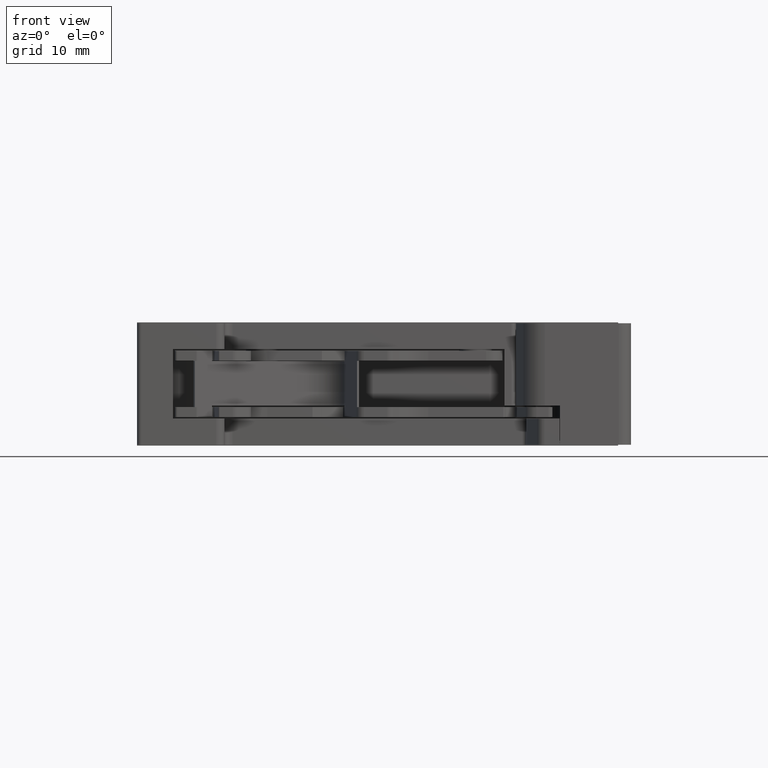
[diagram: clean part render]
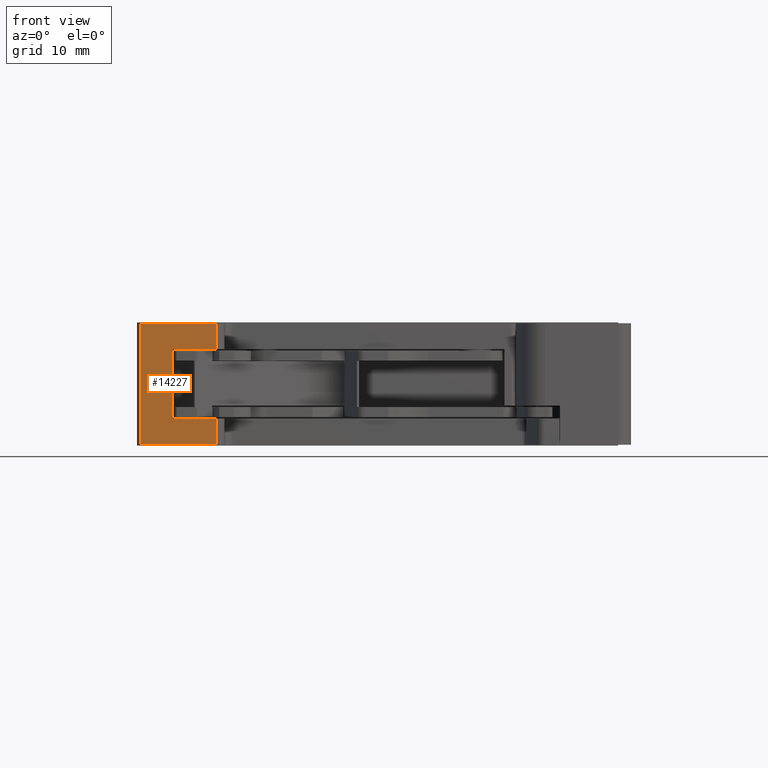
[diagram: same view with one face highlighted and labeled with its STEP entity id]
A machine part, front view. The second image highlights one B-rep face of the part: STEP entity #14227.
In plain terms, the highlighted planar face has unit normal (-0, -1, -0).
Its self-contained STEP definition (entity closure, byte-faithful):
#2 = EDGE_CURVE ( 'NONE', #5334, #5255, #9919, .T. ) ;
#8 = EDGE_CURVE ( 'NONE', #5334, #5244, #2123, .T. ) ;
#32 = EDGE_CURVE ( 'NONE', #5169, #5260, #2223, .T. ) ;
#38 = EDGE_CURVE ( 'NONE', #5260, #5255, #2245, .T. ) ;
#46 = EDGE_CURVE ( 'NONE', #5244, #5267, #2269, .T. ) ;
#116 = CARTESIAN_POINT ( 'NONE',  ( -19.26141093542836900, -101.3831954061451800, -111.6430641829406800 ) ) ;
#682 = CARTESIAN_POINT ( 'NONE',  ( -10.18237388597136900, -101.3832003462192500, -100.0951853950799900 ) ) ;
#796 = CARTESIAN_POINT ( 'NONE',  ( -10.18237347788451100, -101.3832003462194400, -111.6430641829422800 ) ) ;
#816 = CARTESIAN_POINT ( 'NONE',  ( -10.18237374994117200, -101.3832003462193300, -96.94730660721299400 ) ) ;
#817 = CARTESIAN_POINT ( 'NONE',  ( -10.18237374994341100, -101.3832003462193100, -108.4951853950752000 ) ) ;
#834 = CARTESIAN_POINT ( 'NONE',  ( -19.26141093542799600, -101.3831954061452200, -96.94730660721299400 ) ) ;
#2122 = DIRECTION ( 'NONE',  ( 0.9999999999998520100, -5.441187299548519600E-007, -1.766263787554939900E-013 ) ) ;
#2123 = LINE ( 'NONE', #2130, #13605 ) ;
#2130 = CARTESIAN_POINT ( 'NONE',  ( 58.83572104064207100, -101.3832379002573700, -111.6430641829544800 ) ) ;
#2192 = CARTESIAN_POINT ( 'NONE',  ( -10.18237374994117200, -101.3832003462195400, -36.70815176522374700 ) ) ;
#2200 = DIRECTION ( 'NONE',  ( -1.827104299994975200E-021, -3.357914733327243000E-015, 1.000000000000000000 ) ) ;
#2223 = LINE ( 'NONE', #2192, #13613 ) ;
#2245 = LINE ( 'NONE', #2279, #13653 ) ;
#2256 = DIRECTION ( 'NONE',  ( -0.9999999999998520100, 5.441187299548519600E-007, 0.0000000000000000000 ) ) ;
#2264 = CARTESIAN_POINT ( 'NONE',  ( -10.18237347788451100, -101.3832003462196800, -36.70815176522374700 ) ) ;
#2266 = DIRECTION ( 'NONE',  ( -1.827104299994975200E-021, -3.357914733327243000E-015, 1.000000000000000000 ) ) ;
#2269 = LINE ( 'NONE', #2264, #13680 ) ;
#2279 = CARTESIAN_POINT ( 'NONE',  ( 58.83572104064332800, -101.3832379002574100, -96.94730660721299400 ) ) ;
#3159 = CARTESIAN_POINT ( 'NONE',  ( -15.43239094388466400, -101.3831984417975000, -108.4951853950747000 ) ) ;
#3479 = CARTESIAN_POINT ( 'NONE',  ( -15.43239060857201600, -101.3831975366094200, -100.0951853950799900 ) ) ;
#5060 = PLANE ( 'NONE',  #6929 ) ;
#5131 = DIRECTION ( 'NONE',  ( -5.441187299548519600E-007, -0.9999999999998520100, -3.357914733327740000E-015 ) ) ;
#5137 = DIRECTION ( 'NONE',  ( 0.9999999999998520100, -5.441187299548519600E-007, 0.0000000000000000000 ) ) ;
#5141 = FACE_OUTER_BOUND ( 'NONE', #10201, .T. ) ;
#5155 = CARTESIAN_POINT ( 'NONE',  ( -19.26141158240254800, -101.3831954061450100, -36.70815176522374700 ) ) ;
#5169 = VERTEX_POINT ( 'NONE', #682 ) ;
#5244 = VERTEX_POINT ( 'NONE', #796 ) ;
#5255 = VERTEX_POINT ( 'NONE', #834 ) ;
#5260 = VERTEX_POINT ( 'NONE', #816 ) ;
#5267 = VERTEX_POINT ( 'NONE', #817 ) ;
#5334 = VERTEX_POINT ( 'NONE', #116 ) ;
#6510 = VERTEX_POINT ( 'NONE', #3159 ) ;
#6929 = AXIS2_PLACEMENT_3D ( 'NONE', #5155, #5131, #5137 ) ;
#7733 = VECTOR ( 'NONE', #12313, 1000.000000000000000 ) ;
#7850 = VECTOR ( 'NONE', #12632, 1000.000000000000000 ) ;
#7855 = VECTOR ( 'NONE', #12699, 1000.000000000000000 ) ;
#8232 = VERTEX_POINT ( 'NONE', #3479 ) ;
#9246 = ORIENTED_EDGE ( 'NONE', *, *, #38, .T. ) ;
#9248 = ORIENTED_EDGE ( 'NONE', *, *, #17707, .T. ) ;
#9249 = ORIENTED_EDGE ( 'NONE', *, *, #46, .T. ) ;
#9258 = ORIENTED_EDGE ( 'NONE', *, *, #17725, .T. ) ;
#9276 = ORIENTED_EDGE ( 'NONE', *, *, #32, .T. ) ;
#9286 = ORIENTED_EDGE ( 'NONE', *, *, #8, .T. ) ;
#9303 = ORIENTED_EDGE ( 'NONE', *, *, #17613, .T. ) ;
#9308 = ORIENTED_EDGE ( 'NONE', *, *, #2, .F. ) ;
#9919 = LINE ( 'NONE', #9926, #13604 ) ;
#9926 = CARTESIAN_POINT ( 'NONE',  ( -19.26141093542645800, -101.3831954061454300, -36.70815176522374700 ) ) ;
#10201 = EDGE_LOOP ( 'NONE', ( #9249, #9248, #9303, #9258, #9276, #9246, #9308, #9286 ) ) ;
#10441 = DIRECTION ( 'NONE',  ( 2.550156507121659900E-014, -3.357928609207435400E-015, 1.000000000000000000 ) ) ;
#12273 = CARTESIAN_POINT ( 'NONE',  ( -15.43239094388449200, -101.3831974895868500, -36.70815176522374700 ) ) ;
#12298 = LINE ( 'NONE', #12273, #7733 ) ;
#12313 = DIRECTION ( 'NONE',  ( -1.827104299994975200E-021, -3.357914733327243000E-015, 1.000000000000000000 ) ) ;
#12613 = CARTESIAN_POINT ( 'NONE',  ( -19.26141158240254800, -101.3831954061447600, -108.4951853950751800 ) ) ;
#12624 = LINE ( 'NONE', #12613, #7850 ) ;
#12632 = DIRECTION ( 'NONE',  ( -0.9999999999998520100, 5.441187299548519600E-007, -0.0000000000000000000 ) ) ;
#12694 = LINE ( 'NONE', #12720, #7855 ) ;
#12699 = DIRECTION ( 'NONE',  ( 0.9999999999998520100, -5.441187299548519600E-007, 0.0000000000000000000 ) ) ;
#12720 = CARTESIAN_POINT ( 'NONE',  ( -19.26141158240254800, -101.3831954061447900, -100.0951853950799900 ) ) ;
#13604 = VECTOR ( 'NONE', #10441, 1000.000000000000000 ) ;
#13605 = VECTOR ( 'NONE', #2122, 1000.000000000000000 ) ;
#13613 = VECTOR ( 'NONE', #2200, 1000.000000000000000 ) ;
#13653 = VECTOR ( 'NONE', #2256, 1000.000000000000000 ) ;
#13680 = VECTOR ( 'NONE', #2266, 1000.000000000000000 ) ;
#14227 = ADVANCED_FACE ( 'NONE', ( #5141 ), #5060, .T. ) ;
#17613 = EDGE_CURVE ( 'NONE', #6510, #8232, #12298, .T. ) ;
#17707 = EDGE_CURVE ( 'NONE', #5267, #6510, #12624, .T. ) ;
#17725 = EDGE_CURVE ( 'NONE', #8232, #5169, #12694, .T. ) ;